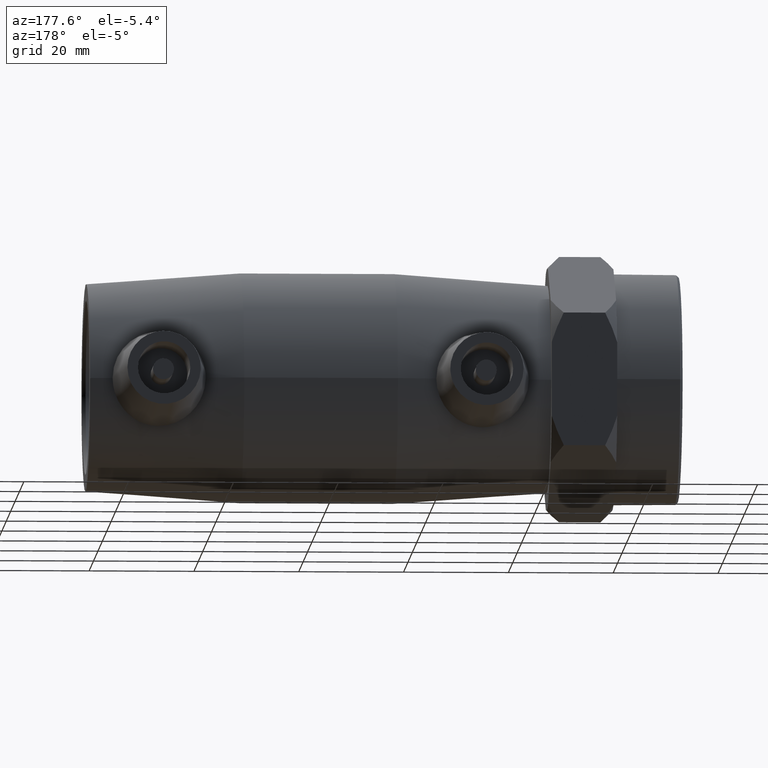
[diagram: clean part render]
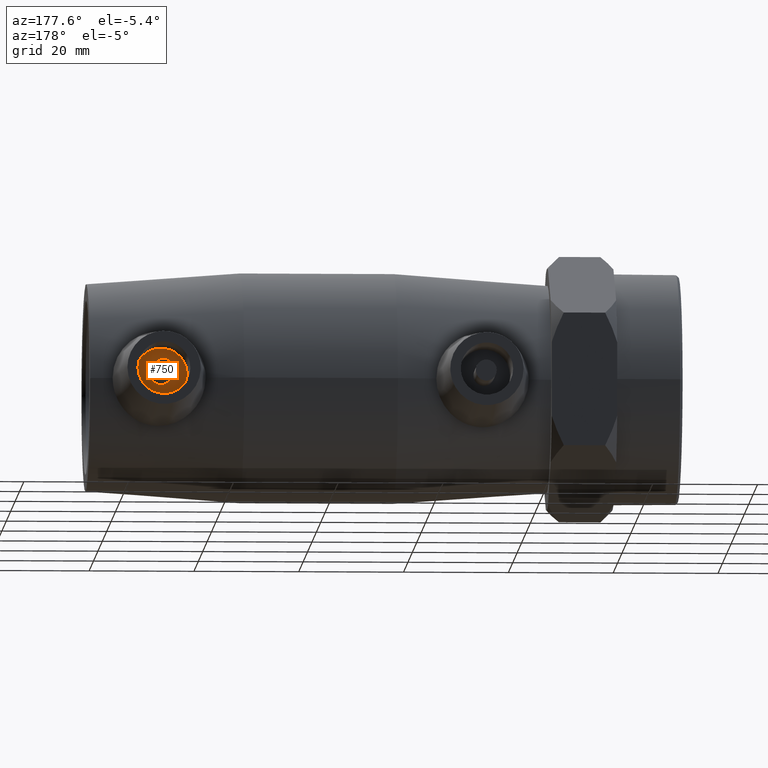
[diagram: same view with one face highlighted and labeled with its STEP entity id]
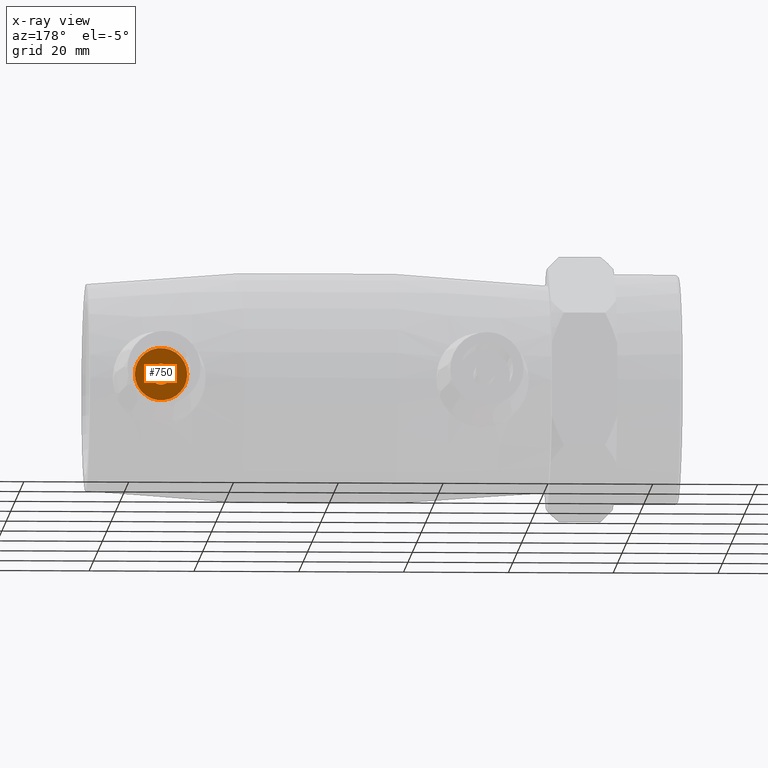
[diagram: x-ray of the same camera — body ghosted, the highlighted face saturated]
A machine part, auxiliary view. The second image highlights one B-rep face of the part: STEP entity #750.
The next image is the same camera in x-ray: the body ghosted, the highlighted face saturated — about 0% of this face is hidden behind the body in this view.
In plain terms, the highlighted planar face has unit normal (0, -1, 0).
Its self-contained STEP definition (entity closure, byte-faithful):
#116=PLANE('',#840);
#136=FACE_BOUND('',#259,.T.);
#191=FACE_OUTER_BOUND('',#258,.T.);
#258=EDGE_LOOP('',(#659));
#259=EDGE_LOOP('',(#660));
#322=CIRCLE('',#836,2.);
#323=CIRCLE('',#838,5.);
#391=VERTEX_POINT('',#1311);
#392=VERTEX_POINT('',#1314);
#486=EDGE_CURVE('',#391,#391,#322,.T.);
#487=EDGE_CURVE('',#392,#392,#323,.T.);
#659=ORIENTED_EDGE('',*,*,#487,.T.);
#660=ORIENTED_EDGE('',*,*,#486,.T.);
#750=ADVANCED_FACE('',(#191,#136),#116,.F.);
#836=AXIS2_PLACEMENT_3D('',#1312,#1029,#1030);
#838=AXIS2_PLACEMENT_3D('',#1315,#1033,#1034);
#840=AXIS2_PLACEMENT_3D('',#1318,#1037,#1038);
#1029=DIRECTION('center_axis',(0.,-1.,0.));
#1030=DIRECTION('ref_axis',(1.,0.,0.));
#1033=DIRECTION('center_axis',(0.,1.,0.));
#1034=DIRECTION('ref_axis',(1.,0.,0.));
#1037=DIRECTION('center_axis',(0.,-1.,0.));
#1038=DIRECTION('ref_axis',(0.,0.,1.));
#1311=CARTESIAN_POINT('',(28.8,28.,-2.44929359829471E-16));
#1312=CARTESIAN_POINT('Origin',(30.8,28.,0.));
#1314=CARTESIAN_POINT('',(25.8,28.,-6.12323399573677E-16));
#1315=CARTESIAN_POINT('Origin',(30.8,28.,0.));
#1318=CARTESIAN_POINT('Origin',(30.8,28.,-9.25185853854297E-17));